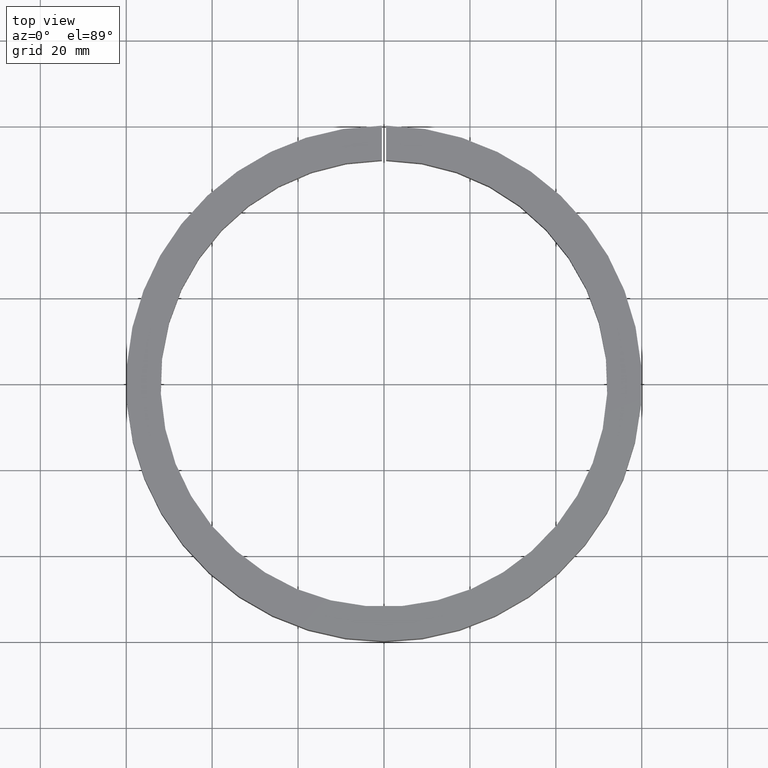
[diagram: clean part render]
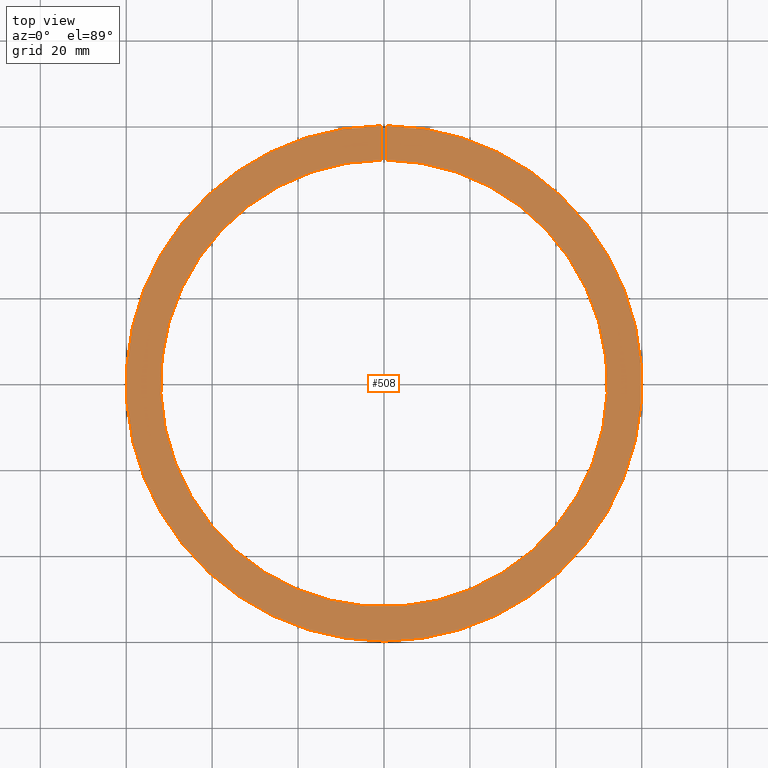
[diagram: same view with one face highlighted and labeled with its STEP entity id]
A machine part, top view. The second image highlights one B-rep face of the part: STEP entity #508.
In plain terms, the highlighted planar face has unit normal (-0, 0, -1).
Its self-contained STEP definition (entity closure, byte-faithful):
#303 = AXIS2_PLACEMENT_3D ( 'NONE', #7861, #12617, #10768 ) ;
#508 = ADVANCED_FACE ( 'NONE', ( #6420 ), #8411, .F. ) ;
#581 = CIRCLE ( 'NONE', #9918, 60.00000000000000000 ) ;
#763 = DIRECTION ( 'NONE',  ( -0.0000000000000000000, -0.0000000000000000000, -1.000000000000000000 ) ) ;
#846 = CARTESIAN_POINT ( 'NONE',  ( -0.5000000000000000000, 51.99759609828130600, 8.000000000000001800 ) ) ;
#1372 = EDGE_CURVE ( 'NONE', #4928, #5372, #8793, .T. ) ;
#1663 = ORIENTED_EDGE ( 'NONE', *, *, #5001, .T. ) ;
#2137 = DIRECTION ( 'NONE',  ( 0.0000000000000000000, 1.000000000000000000, -0.0000000000000000000 ) ) ;
#2409 = DIRECTION ( 'NONE',  ( -1.000000000000000000, 0.0000000000000000000, 0.0000000000000000000 ) ) ;
#2499 = CARTESIAN_POINT ( 'NONE',  ( 0.0000000000000000000, -52.00000000000000000, 8.000000000000000000 ) ) ;
#3993 = CARTESIAN_POINT ( 'NONE',  ( 0.5000000000000000000, 59.99791663049643400, 8.000000000000000000 ) ) ;
#4344 = LINE ( 'NONE', #7967, #11741 ) ;
#4618 = DIRECTION ( 'NONE',  ( -1.000000000000000000, 0.0000000000000000000, 0.0000000000000000000 ) ) ;
#4669 = CARTESIAN_POINT ( 'NONE',  ( -0.5000000000000000000, 59.99791663049642700, 8.000000000000001800 ) ) ;
#4928 = VERTEX_POINT ( 'NONE', #846 ) ;
#5001 = EDGE_CURVE ( 'NONE', #10436, #4928, #5566, .T. ) ;
#5151 = DIRECTION ( 'NONE',  ( 0.0000000000000000000, 1.000000000000000000, -0.0000000000000000000 ) ) ;
#5230 = ORIENTED_EDGE ( 'NONE', *, *, #1372, .T. ) ;
#5372 = VERTEX_POINT ( 'NONE', #4669 ) ;
#5498 = AXIS2_PLACEMENT_3D ( 'NONE', #2499, #8336, #2409 ) ;
#5566 = CIRCLE ( 'NONE', #303, 52.00000000000000000 ) ;
#5790 = EDGE_CURVE ( 'NONE', #10436, #12178, #4344, .T. ) ;
#6378 = CARTESIAN_POINT ( 'NONE',  ( 0.5000000000000000000, 51.99759609828130600, 8.000000000000001800 ) ) ;
#6420 = FACE_OUTER_BOUND ( 'NONE', #8763, .T. ) ;
#7150 = CARTESIAN_POINT ( 'NONE',  ( -0.5000000000000000000, 0.0000000000000000000, 8.000000000000001800 ) ) ;
#7861 = CARTESIAN_POINT ( 'NONE',  ( 0.0000000000000000000, 0.0000000000000000000, 8.000000000000001800 ) ) ;
#7967 = CARTESIAN_POINT ( 'NONE',  ( 0.5000000000000000000, 0.0000000000000000000, 8.000000000000001800 ) ) ;
#8336 = DIRECTION ( 'NONE',  ( -0.0000000000000000000, 0.0000000000000000000, -1.000000000000000000 ) ) ;
#8411 = PLANE ( 'NONE',  #5498 ) ;
#8763 = EDGE_LOOP ( 'NONE', ( #9691, #9222, #1663, #5230 ) ) ;
#8793 = LINE ( 'NONE', #7150, #12009 ) ;
#8862 = EDGE_CURVE ( 'NONE', #12178, #5372, #581, .T. ) ;
#9222 = ORIENTED_EDGE ( 'NONE', *, *, #5790, .F. ) ;
#9691 = ORIENTED_EDGE ( 'NONE', *, *, #8862, .F. ) ;
#9918 = AXIS2_PLACEMENT_3D ( 'NONE', #11248, #763, #4618 ) ;
#10436 = VERTEX_POINT ( 'NONE', #6378 ) ;
#10768 = DIRECTION ( 'NONE',  ( -1.000000000000000000, 0.0000000000000000000, 0.0000000000000000000 ) ) ;
#11248 = CARTESIAN_POINT ( 'NONE',  ( 0.0000000000000000000, 0.0000000000000000000, 8.000000000000000000 ) ) ;
#11741 = VECTOR ( 'NONE', #2137, 1000.000000000000000 ) ;
#12009 = VECTOR ( 'NONE', #5151, 1000.000000000000000 ) ;
#12178 = VERTEX_POINT ( 'NONE', #3993 ) ;
#12617 = DIRECTION ( 'NONE',  ( -0.0000000000000000000, -0.0000000000000000000, -1.000000000000000000 ) ) ;